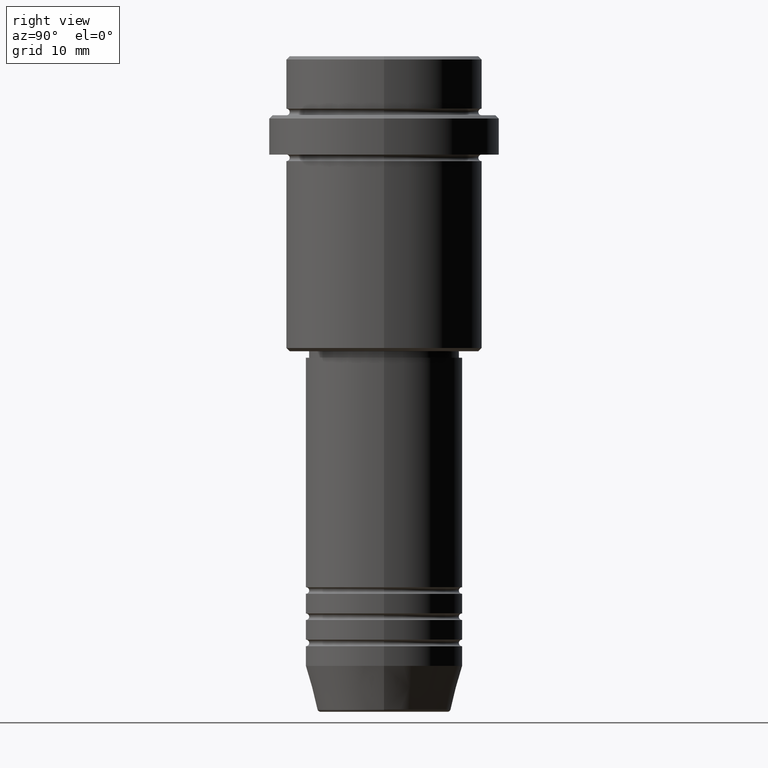
[diagram: clean part render]
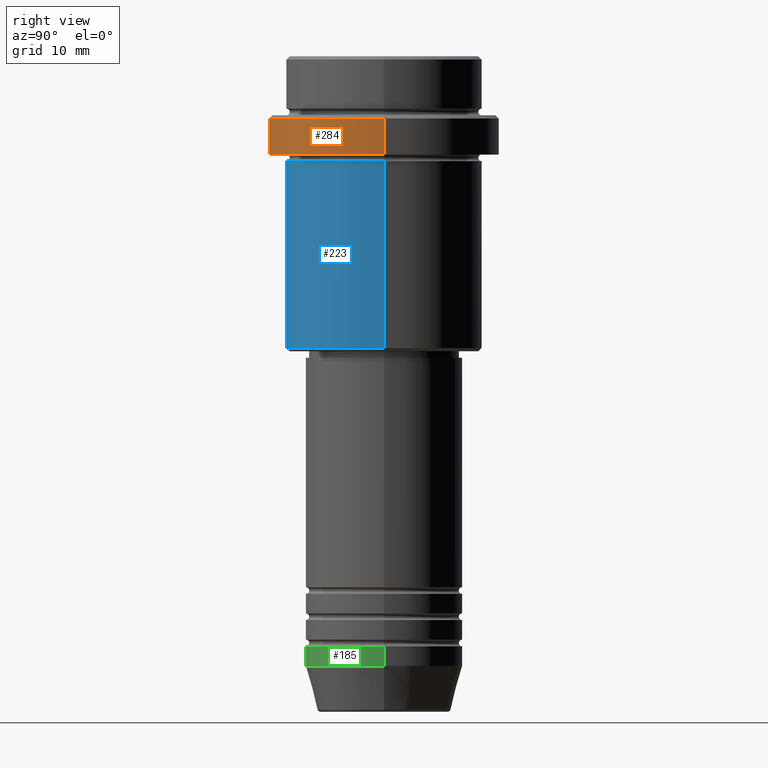
[diagram: same view with three faces highlighted in distinct colors, each labeled with its STEP entity id]
A machine part, right view with three faces highlighted in distinct colors.
Their STEP definitions:

[orange] entity #284 — the highlighted cylindrical surface (partial cylindrical patch) has radius 17.5 mm, axis along (-0, -0, 1).
#9 = ORIENTED_EDGE ( 'NONE', *, *, #162, .T. ) ;
#35 = DIRECTION ( 'NONE',  ( -0.000000000000000000, -0.000000000000000000, 1.000000000000000000 ) ) ;
#92 = CARTESIAN_POINT ( 'NONE',  ( 0.000000000000000000, 0.000000000000000000, 0.000000000000000000 ) ) ;
#107 = LINE ( 'NONE', #530, #713 ) ;
#128 = EDGE_CURVE ( 'NONE', #1393, #515, #107, .T. ) ;
#153 = VERTEX_POINT ( 'NONE', #556 ) ;
#162 = EDGE_CURVE ( 'NONE', #1136, #1393, #598, .T. ) ;
#207 = FACE_OUTER_BOUND ( 'NONE', #717, .T. ) ;
#269 = EDGE_CURVE ( 'NONE', #1136, #153, #771, .T. ) ;
#284 = ADVANCED_FACE ( 'NONE', ( #207 ), #629, .T. ) ;
#298 = CARTESIAN_POINT ( 'NONE',  ( -17.50000000000000000, 2.143131898507868248E-15, -15.00000000000000000 ) ) ;
#332 = AXIS2_PLACEMENT_3D ( 'NONE', #92, #925, #795 ) ;
#344 = CARTESIAN_POINT ( 'NONE',  ( -17.50000000000000000, 2.143131898507868248E-15, 0.000000000000000000 ) ) ;
#409 = AXIS2_PLACEMENT_3D ( 'NONE', #459, #35, #874 ) ;
#459 = CARTESIAN_POINT ( 'NONE',  ( 0.000000000000000000, 0.000000000000000000, -15.00000000000000000 ) ) ;
#479 = CARTESIAN_POINT ( 'NONE',  ( 17.50000000000000000, 0.000000000000000000, -9.500000000000026645 ) ) ;
#515 = VERTEX_POINT ( 'NONE', #479 ) ;
#530 = CARTESIAN_POINT ( 'NONE',  ( 17.50000000000000000, 0.000000000000000000, 0.000000000000000000 ) ) ;
#556 = CARTESIAN_POINT ( 'NONE',  ( -17.50000000000000000, 2.143131898507868248E-15, -9.500000000000026645 ) ) ;
#598 = CIRCLE ( 'NONE', #409, 17.50000000000000000 ) ;
#615 = VECTOR ( 'NONE', #855, 1000.000000000000000 ) ;
#629 = CYLINDRICAL_SURFACE ( 'NONE', #332, 17.50000000000000000 ) ;
#639 = ORIENTED_EDGE ( 'NONE', *, *, #1234, .T. ) ;
#646 = CARTESIAN_POINT ( 'NONE',  ( 0.000000000000000000, 0.000000000000000000, -9.500000000000026645 ) ) ;
#713 = VECTOR ( 'NONE', #862, 1000.000000000000000 ) ;
#717 = EDGE_LOOP ( 'NONE', ( #746, #9, #1058, #639 ) ) ;
#746 = ORIENTED_EDGE ( 'NONE', *, *, #269, .F. ) ;
#771 = LINE ( 'NONE', #344, #615 ) ;
#795 = DIRECTION ( 'NONE',  ( 1.000000000000000000, 0.000000000000000000, 0.000000000000000000 ) ) ;
#808 = CIRCLE ( 'NONE', #1023, 17.50000000000000000 ) ;
#833 = CARTESIAN_POINT ( 'NONE',  ( 17.50000000000000000, 0.000000000000000000, -15.00000000000000000 ) ) ;
#855 = DIRECTION ( 'NONE',  ( -0.000000000000000000, -0.000000000000000000, 1.000000000000000000 ) ) ;
#862 = DIRECTION ( 'NONE',  ( -0.000000000000000000, -0.000000000000000000, 1.000000000000000000 ) ) ;
#874 = DIRECTION ( 'NONE',  ( 1.000000000000000000, 0.000000000000000000, 0.000000000000000000 ) ) ;
#925 = DIRECTION ( 'NONE',  ( -0.000000000000000000, -0.000000000000000000, 1.000000000000000000 ) ) ;
#997 = DIRECTION ( 'NONE',  ( 0.000000000000000000, 0.000000000000000000, -1.000000000000000000 ) ) ;
#1023 = AXIS2_PLACEMENT_3D ( 'NONE', #646, #997, #1080 ) ;
#1058 = ORIENTED_EDGE ( 'NONE', *, *, #128, .T. ) ;
#1080 = DIRECTION ( 'NONE',  ( 1.000000000000000000, 0.000000000000000000, 0.000000000000000000 ) ) ;
#1136 = VERTEX_POINT ( 'NONE', #298 ) ;
#1234 = EDGE_CURVE ( 'NONE', #515, #153, #808, .T. ) ;
#1393 = VERTEX_POINT ( 'NONE', #833 ) ;

[blue] entity #223 — the highlighted cylindrical surface (partial cylindrical patch) has radius 15 mm, axis along (-0, -0, 1).
#29 = CARTESIAN_POINT ( 'NONE',  ( 0.000000000000000000, 0.000000000000000000, -44.49999999999998579 ) ) ;
#45 = CARTESIAN_POINT ( 'NONE',  ( 15.00000000000000000, 0.000000000000000000, 0.000000000000000000 ) ) ;
#74 = VECTOR ( 'NONE', #86, 1000.000000000000000 ) ;
#86 = DIRECTION ( 'NONE',  ( -0.000000000000000000, -0.000000000000000000, 1.000000000000000000 ) ) ;
#140 = VERTEX_POINT ( 'NONE', #174 ) ;
#174 = CARTESIAN_POINT ( 'NONE',  ( 15.00000000000000178, 0.000000000000000000, -16.00000000000000000 ) ) ;
#223 = ADVANCED_FACE ( 'NONE', ( #828 ), #1246, .T. ) ;
#231 = CIRCLE ( 'NONE', #1413, 15.00000000000000000 ) ;
#244 = VERTEX_POINT ( 'NONE', #996 ) ;
#273 = DIRECTION ( 'NONE',  ( -0.000000000000000000, -0.000000000000000000, 1.000000000000000000 ) ) ;
#367 = ORIENTED_EDGE ( 'NONE', *, *, #748, .F. ) ;
#424 = CARTESIAN_POINT ( 'NONE',  ( 0.000000000000000000, 0.000000000000000000, -16.00000000000000000 ) ) ;
#435 = AXIS2_PLACEMENT_3D ( 'NONE', #424, #627, #1077 ) ;
#485 = AXIS2_PLACEMENT_3D ( 'NONE', #1375, #273, #818 ) ;
#543 = VERTEX_POINT ( 'NONE', #1148 ) ;
#544 = DIRECTION ( 'NONE',  ( -1.000000000000000000, 0.000000000000000000, 0.000000000000000000 ) ) ;
#627 = DIRECTION ( 'NONE',  ( -0.000000000000000000, -0.000000000000000000, 1.000000000000000000 ) ) ;
#700 = LINE ( 'NONE', #45, #955 ) ;
#727 = EDGE_CURVE ( 'NONE', #244, #140, #1355, .T. ) ;
#748 = EDGE_CURVE ( 'NONE', #543, #244, #848, .T. ) ;
#790 = ORIENTED_EDGE ( 'NONE', *, *, #840, .T. ) ;
#818 = DIRECTION ( 'NONE',  ( 1.000000000000000000, 0.000000000000000000, 0.000000000000000000 ) ) ;
#828 = FACE_OUTER_BOUND ( 'NONE', #1351, .T. ) ;
#840 = EDGE_CURVE ( 'NONE', #543, #1211, #231, .T. ) ;
#848 = LINE ( 'NONE', #970, #74 ) ;
#955 = VECTOR ( 'NONE', #1264, 1000.000000000000000 ) ;
#960 = EDGE_CURVE ( 'NONE', #1211, #140, #700, .T. ) ;
#970 = CARTESIAN_POINT ( 'NONE',  ( -15.00000000000000000, 1.836970198721029589E-15, 0.000000000000000000 ) ) ;
#996 = CARTESIAN_POINT ( 'NONE',  ( -15.00000000000000355, 1.836970198721029983E-15, -16.00000000000000000 ) ) ;
#1018 = ORIENTED_EDGE ( 'NONE', *, *, #727, .F. ) ;
#1064 = ORIENTED_EDGE ( 'NONE', *, *, #960, .T. ) ;
#1077 = DIRECTION ( 'NONE',  ( 1.000000000000000000, 0.000000000000000000, 0.000000000000000000 ) ) ;
#1148 = CARTESIAN_POINT ( 'NONE',  ( -15.00000000000000000, 1.836970198721029589E-15, -44.49999999999998579 ) ) ;
#1211 = VERTEX_POINT ( 'NONE', #1243 ) ;
#1243 = CARTESIAN_POINT ( 'NONE',  ( 15.00000000000000000, 0.000000000000000000, -44.49999999999998579 ) ) ;
#1246 = CYLINDRICAL_SURFACE ( 'NONE', #485, 15.00000000000000000 ) ;
#1264 = DIRECTION ( 'NONE',  ( -0.000000000000000000, -0.000000000000000000, 1.000000000000000000 ) ) ;
#1337 = DIRECTION ( 'NONE',  ( -0.000000000000000000, -0.000000000000000000, 1.000000000000000000 ) ) ;
#1351 = EDGE_LOOP ( 'NONE', ( #367, #790, #1064, #1018 ) ) ;
#1355 = CIRCLE ( 'NONE', #435, 15.00000000000000178 ) ;
#1375 = CARTESIAN_POINT ( 'NONE',  ( 0.000000000000000000, 0.000000000000000000, 0.000000000000000000 ) ) ;
#1413 = AXIS2_PLACEMENT_3D ( 'NONE', #29, #1337, #544 ) ;

[green] entity #185 — the highlighted cylindrical surface (partial cylindrical patch) has radius 12 mm, axis along (-0, -0, 1).
#44 = CARTESIAN_POINT ( 'NONE',  ( 12.00000000000000000, 0.000000000000000000, 0.000000000000000000 ) ) ;
#47 = CARTESIAN_POINT ( 'NONE',  ( 12.00000000000000000, 0.000000000000000000, -90.00000000000000000 ) ) ;
#48 = EDGE_LOOP ( 'NONE', ( #325, #670, #932, #224 ) ) ;
#115 = VECTOR ( 'NONE', #982, 1000.000000000000000 ) ;
#178 = FACE_OUTER_BOUND ( 'NONE', #48, .T. ) ;
#185 = ADVANCED_FACE ( 'NONE', ( #178 ), #480, .T. ) ;
#200 = AXIS2_PLACEMENT_3D ( 'NONE', #285, #714, #787 ) ;
#222 = EDGE_CURVE ( 'NONE', #619, #541, #803, .T. ) ;
#224 = ORIENTED_EDGE ( 'NONE', *, *, #1052, .F. ) ;
#246 = VERTEX_POINT ( 'NONE', #366 ) ;
#285 = CARTESIAN_POINT ( 'NONE',  ( 0.000000000000000000, 0.000000000000000000, -90.00000000000000000 ) ) ;
#291 = DIRECTION ( 'NONE',  ( 1.000000000000000000, 0.000000000000000000, 0.000000000000000000 ) ) ;
#325 = ORIENTED_EDGE ( 'NONE', *, *, #834, .F. ) ;
#349 = DIRECTION ( 'NONE',  ( 1.000000000000000000, 0.000000000000000000, 0.000000000000000000 ) ) ;
#363 = CIRCLE ( 'NONE', #200, 12.00000000000000000 ) ;
#366 = CARTESIAN_POINT ( 'NONE',  ( -12.00000000000000000, 1.469576158976823947E-15, -90.00000000000000000 ) ) ;
#396 = CARTESIAN_POINT ( 'NONE',  ( -12.00000000000000000, 1.469576158976823947E-15, -93.00000000000000000 ) ) ;
#406 = DIRECTION ( 'NONE',  ( -0.000000000000000000, -0.000000000000000000, 1.000000000000000000 ) ) ;
#444 = DIRECTION ( 'NONE',  ( -0.000000000000000000, -0.000000000000000000, 1.000000000000000000 ) ) ;
#480 = CYLINDRICAL_SURFACE ( 'NONE', #1384, 12.00000000000000000 ) ;
#509 = CIRCLE ( 'NONE', #976, 12.00000000000000000 ) ;
#541 = VERTEX_POINT ( 'NONE', #47 ) ;
#582 = VERTEX_POINT ( 'NONE', #396 ) ;
#619 = VERTEX_POINT ( 'NONE', #1377 ) ;
#670 = ORIENTED_EDGE ( 'NONE', *, *, #1281, .T. ) ;
#695 = CARTESIAN_POINT ( 'NONE',  ( 0.000000000000000000, 0.000000000000000000, 0.000000000000000000 ) ) ;
#714 = DIRECTION ( 'NONE',  ( -0.000000000000000000, -0.000000000000000000, 1.000000000000000000 ) ) ;
#765 = CARTESIAN_POINT ( 'NONE',  ( -12.00000000000000000, 1.469576158976823947E-15, 0.000000000000000000 ) ) ;
#787 = DIRECTION ( 'NONE',  ( 1.000000000000000000, 0.000000000000000000, 0.000000000000000000 ) ) ;
#803 = LINE ( 'NONE', #44, #1292 ) ;
#834 = EDGE_CURVE ( 'NONE', #582, #246, #1222, .T. ) ;
#921 = DIRECTION ( 'NONE',  ( -0.000000000000000000, -0.000000000000000000, 1.000000000000000000 ) ) ;
#932 = ORIENTED_EDGE ( 'NONE', *, *, #222, .T. ) ;
#976 = AXIS2_PLACEMENT_3D ( 'NONE', #1113, #444, #349 ) ;
#982 = DIRECTION ( 'NONE',  ( -0.000000000000000000, -0.000000000000000000, 1.000000000000000000 ) ) ;
#1052 = EDGE_CURVE ( 'NONE', #246, #541, #363, .T. ) ;
#1113 = CARTESIAN_POINT ( 'NONE',  ( 0.000000000000000000, 0.000000000000000000, -93.00000000000000000 ) ) ;
#1222 = LINE ( 'NONE', #765, #115 ) ;
#1281 = EDGE_CURVE ( 'NONE', #582, #619, #509, .T. ) ;
#1292 = VECTOR ( 'NONE', #406, 1000.000000000000000 ) ;
#1377 = CARTESIAN_POINT ( 'NONE',  ( 12.00000000000000000, 0.000000000000000000, -93.00000000000000000 ) ) ;
#1384 = AXIS2_PLACEMENT_3D ( 'NONE', #695, #921, #291 ) ;